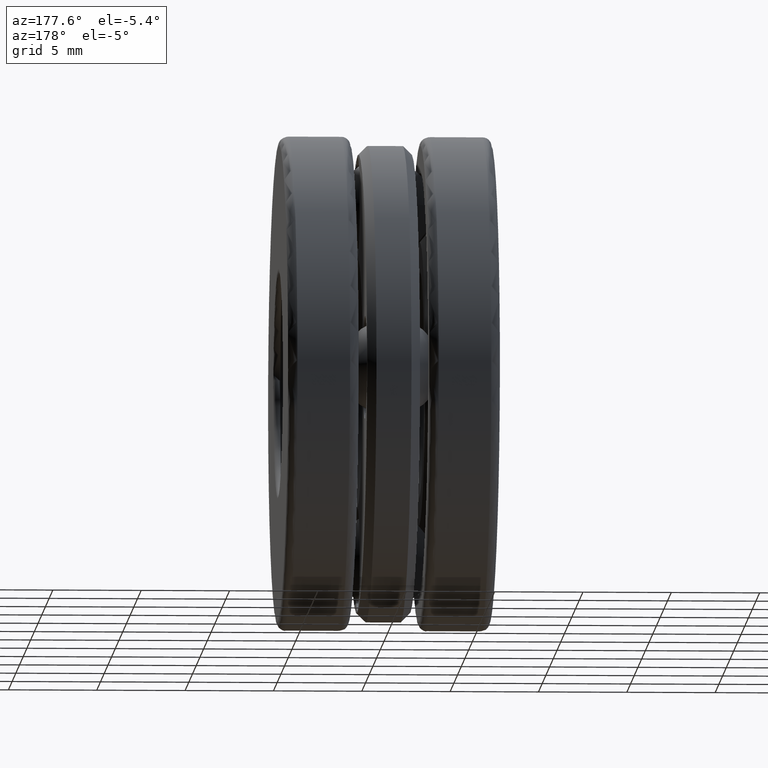
[diagram: clean part render]
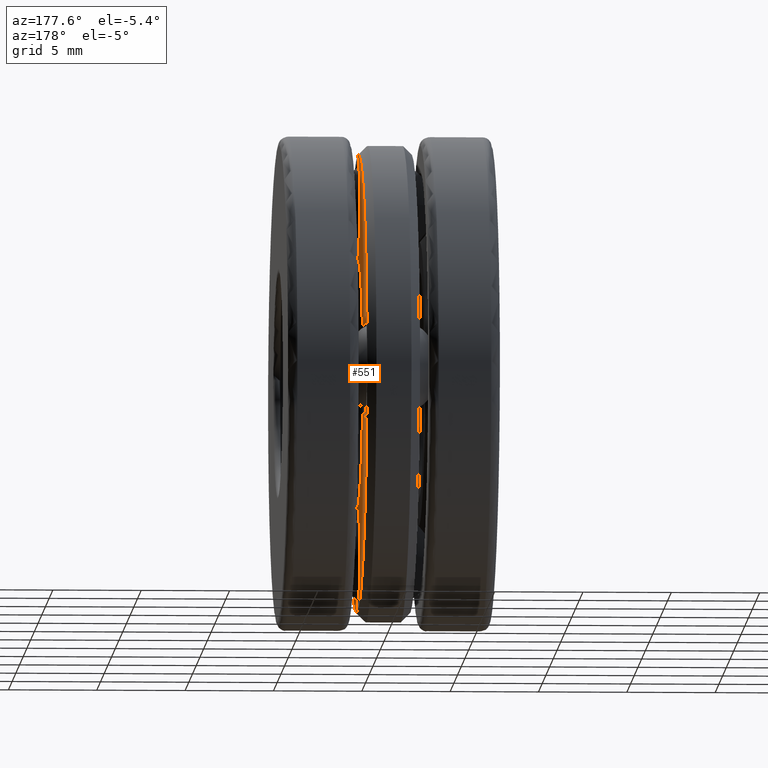
[diagram: same view with one face highlighted and labeled with its STEP entity id]
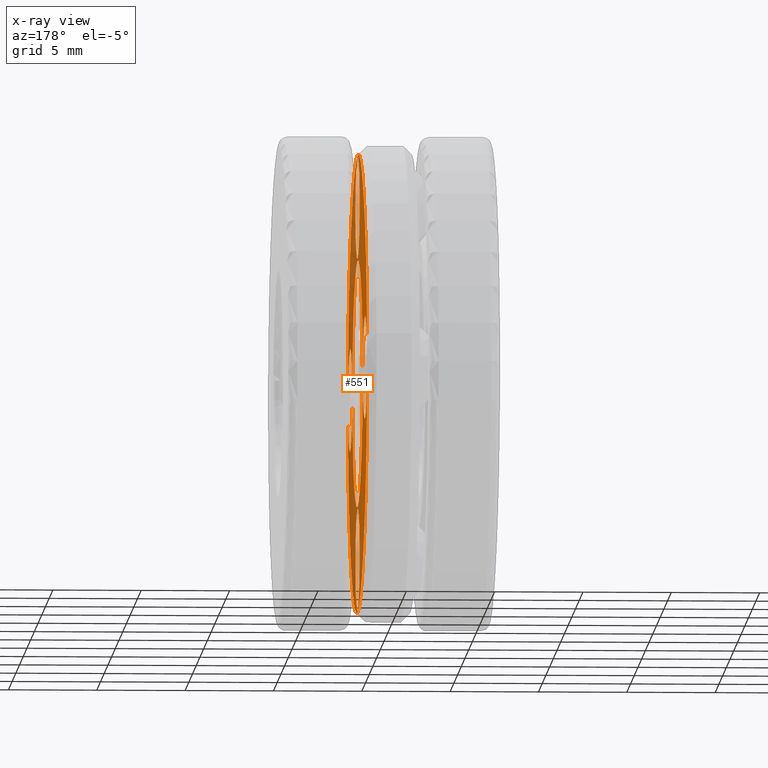
[diagram: x-ray of the same camera — body ghosted, the highlighted face saturated]
A machine part, auxiliary view. The second image highlights one B-rep face of the part: STEP entity #551.
The next image is the same camera in x-ray: the body ghosted, the highlighted face saturated — about 48% of this face is hidden behind the body in this view.
In plain terms, the highlighted planar face has unit normal (-1, 0, -0).
Its self-contained STEP definition (entity closure, byte-faithful):
#7 = EDGE_CURVE ( 'NONE', #526, #526, #804, .T. ) ;
#24 = DIRECTION ( 'NONE',  ( 0.0000000000000000000, 0.0000000000000000000, 1.000000000000000000 ) ) ;
#26 = DIRECTION ( 'NONE',  ( -1.000000000000000000, 0.0000000000000000000, -0.0000000000000000000 ) ) ;
#33 = EDGE_LOOP ( 'NONE', ( #731 ) ) ;
#82 = ORIENTED_EDGE ( 'NONE', *, *, #463, .T. ) ;
#84 = CIRCLE ( 'NONE', #769, 0.1145000000000000000 ) ;
#95 = DIRECTION ( 'NONE',  ( -1.000000000000000000, -0.0000000000000000000, -0.0000000000000000000 ) ) ;
#139 = ORIENTED_EDGE ( 'NONE', *, *, #270, .T. ) ;
#165 = FACE_BOUND ( 'NONE', #252, .T. ) ;
#167 = DIRECTION ( 'NONE',  ( 0.0000000000000000000, 0.0000000000000000000, 1.000000000000000000 ) ) ;
#168 = VERTEX_POINT ( 'NONE', #564 ) ;
#183 = VERTEX_POINT ( 'NONE', #319 ) ;
#216 = ORIENTED_EDGE ( 'NONE', *, *, #673, .T. ) ;
#218 = CARTESIAN_POINT ( 'NONE',  ( 0.05900000000000000400, 0.5110000000000001200, 0.0000000000000000000 ) ) ;
#238 = EDGE_CURVE ( 'NONE', #183, #183, #716, .T. ) ;
#240 = DIRECTION ( 'NONE',  ( -1.000000000000000000, -0.0000000000000000000, -0.0000000000000000000 ) ) ;
#252 = EDGE_LOOP ( 'NONE', ( #82 ) ) ;
#258 = CARTESIAN_POINT ( 'NONE',  ( 0.05900000000000000400, 1.118972798279982700E-016, -0.2791102362204724300 ) ) ;
#263 = CARTESIAN_POINT ( 'NONE',  ( 0.05900000000000000400, 0.3936102362204724800, -8.611099146760528000E-018 ) ) ;
#270 = EDGE_CURVE ( 'NONE', #297, #297, #84, .T. ) ;
#280 = VERTEX_POINT ( 'NONE', #321 ) ;
#284 = EDGE_LOOP ( 'NONE', ( #216 ) ) ;
#291 = EDGE_LOOP ( 'NONE', ( #376 ) ) ;
#297 = VERTEX_POINT ( 'NONE', #747 ) ;
#305 = FACE_BOUND ( 'NONE', #665, .T. ) ;
#319 = CARTESIAN_POINT ( 'NONE',  ( 0.05899999999999999000, 0.0000000000000000000, 0.5110000000000001200 ) ) ;
#321 = CARTESIAN_POINT ( 'NONE',  ( 0.05900000000000000400, -6.369392823809474900E-017, 0.5081102362204724700 ) ) ;
#330 = FACE_BOUND ( 'NONE', #284, .T. ) ;
#331 = DIRECTION ( 'NONE',  ( 0.0000000000000000000, 0.0000000000000000000, 1.000000000000000000 ) ) ;
#351 = AXIS2_PLACEMENT_3D ( 'NONE', #218, #26, #471 ) ;
#362 = ORIENTED_EDGE ( 'NONE', *, *, #740, .T. ) ;
#365 = CARTESIAN_POINT ( 'NONE',  ( 0.05900000000000003200, 0.0000000000000000000, 0.0000000000000000000 ) ) ;
#367 = CIRCLE ( 'NONE', #397, 0.1145000000000000200 ) ;
#376 = ORIENTED_EDGE ( 'NONE', *, *, #238, .F. ) ;
#382 = AXIS2_PLACEMENT_3D ( 'NONE', #455, #756, #706 ) ;
#397 = AXIS2_PLACEMENT_3D ( 'NONE', #465, #532, #24 ) ;
#455 = CARTESIAN_POINT ( 'NONE',  ( 0.05899999999999999000, 0.0000000000000000000, 0.0000000000000000000 ) ) ;
#463 = EDGE_CURVE ( 'NONE', #168, #168, #367, .T. ) ;
#465 = CARTESIAN_POINT ( 'NONE',  ( 0.05900000000000000400, -0.3936102362204724800, -3.959225244314298700E-017 ) ) ;
#471 = DIRECTION ( 'NONE',  ( -0.0000000000000000000, 0.0000000000000000000, 1.000000000000000000 ) ) ;
#493 = FACE_BOUND ( 'NONE', #749, .T. ) ;
#496 = CARTESIAN_POINT ( 'NONE',  ( 0.05900000000000000400, 1.118972798279982700E-016, -0.3936102362204724800 ) ) ;
#526 = VERTEX_POINT ( 'NONE', #634 ) ;
#532 = DIRECTION ( 'NONE',  ( -1.000000000000000000, -0.0000000000000000000, -0.0000000000000000000 ) ) ;
#543 = CIRCLE ( 'NONE', #580, 0.1144999999999999600 ) ;
#544 = DIRECTION ( 'NONE',  ( 0.0000000000000000000, 0.0000000000000000000, 1.000000000000000000 ) ) ;
#551 = ADVANCED_FACE ( 'NONE', ( #330, #165, #305, #493, #618, #678 ), #722, .F. ) ;
#564 = CARTESIAN_POINT ( 'NONE',  ( 0.05900000000000000400, -0.3936102362204724800, 0.1144999999999999900 ) ) ;
#577 = AXIS2_PLACEMENT_3D ( 'NONE', #365, #668, #544 ) ;
#580 = AXIS2_PLACEMENT_3D ( 'NONE', #799, #240, #671 ) ;
#618 = FACE_OUTER_BOUND ( 'NONE', #291, .T. ) ;
#622 = CIRCLE ( 'NONE', #788, 0.1145000000000000300 ) ;
#634 = CARTESIAN_POINT ( 'NONE',  ( 0.05900000000000003200, 0.0000000000000000000, 0.2762204724409448900 ) ) ;
#665 = EDGE_LOOP ( 'NONE', ( #362 ) ) ;
#668 = DIRECTION ( 'NONE',  ( -1.000000000000000000, -0.0000000000000000000, -0.0000000000000000000 ) ) ;
#671 = DIRECTION ( 'NONE',  ( 0.0000000000000000000, 0.0000000000000000000, 1.000000000000000000 ) ) ;
#673 = EDGE_CURVE ( 'NONE', #280, #280, #543, .T. ) ;
#678 = FACE_BOUND ( 'NONE', #33, .T. ) ;
#706 = DIRECTION ( 'NONE',  ( 0.0000000000000000000, 0.0000000000000000000, 1.000000000000000000 ) ) ;
#716 = CIRCLE ( 'NONE', #382, 0.5110000000000001200 ) ;
#722 = PLANE ( 'NONE',  #351 ) ;
#731 = ORIENTED_EDGE ( 'NONE', *, *, #7, .T. ) ;
#740 = EDGE_CURVE ( 'NONE', #786, #786, #622, .T. ) ;
#747 = CARTESIAN_POINT ( 'NONE',  ( 0.05900000000000000400, 0.3936102362204724800, 0.1144999999999999900 ) ) ;
#749 = EDGE_LOOP ( 'NONE', ( #139 ) ) ;
#756 = DIRECTION ( 'NONE',  ( -1.000000000000000000, -0.0000000000000000000, -0.0000000000000000000 ) ) ;
#764 = DIRECTION ( 'NONE',  ( -1.000000000000000000, -0.0000000000000000000, -0.0000000000000000000 ) ) ;
#769 = AXIS2_PLACEMENT_3D ( 'NONE', #263, #764, #331 ) ;
#786 = VERTEX_POINT ( 'NONE', #258 ) ;
#788 = AXIS2_PLACEMENT_3D ( 'NONE', #496, #95, #167 ) ;
#799 = CARTESIAN_POINT ( 'NONE',  ( 0.05900000000000000400, -6.369392823809474900E-017, 0.3936102362204724800 ) ) ;
#804 = CIRCLE ( 'NONE', #577, 0.2762204724409448900 ) ;